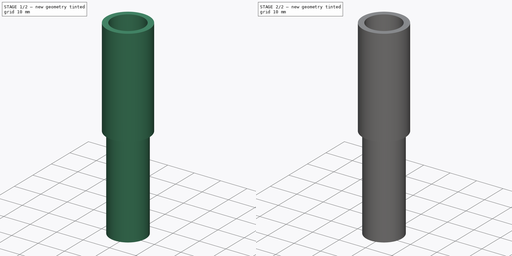
[diagram: build sequence overview — one tinted view per stage of 2, left to right]
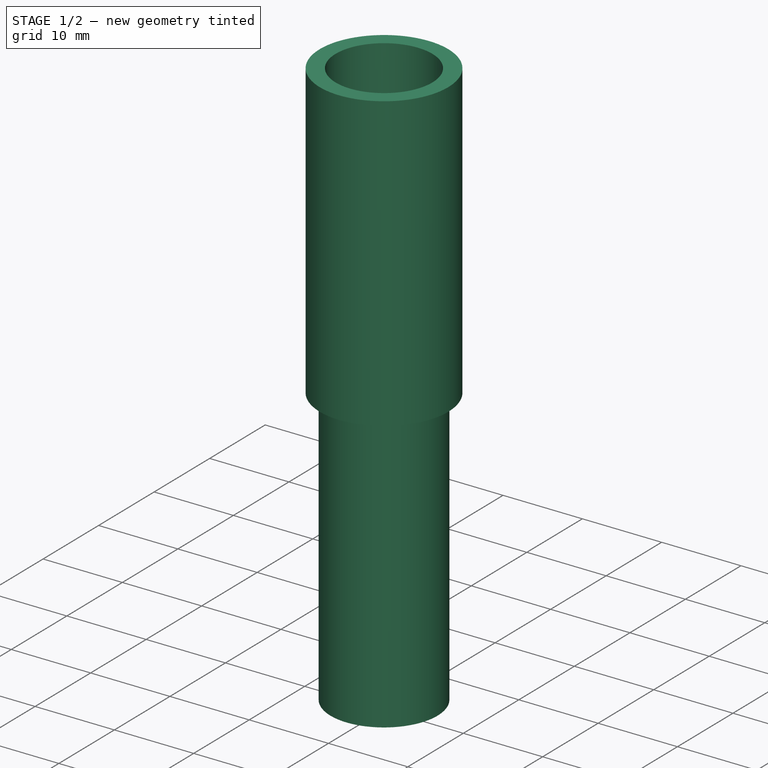
[diagram: stage 1 of 2 — iso view after this stage's code; geometry added in this stage tinted green]
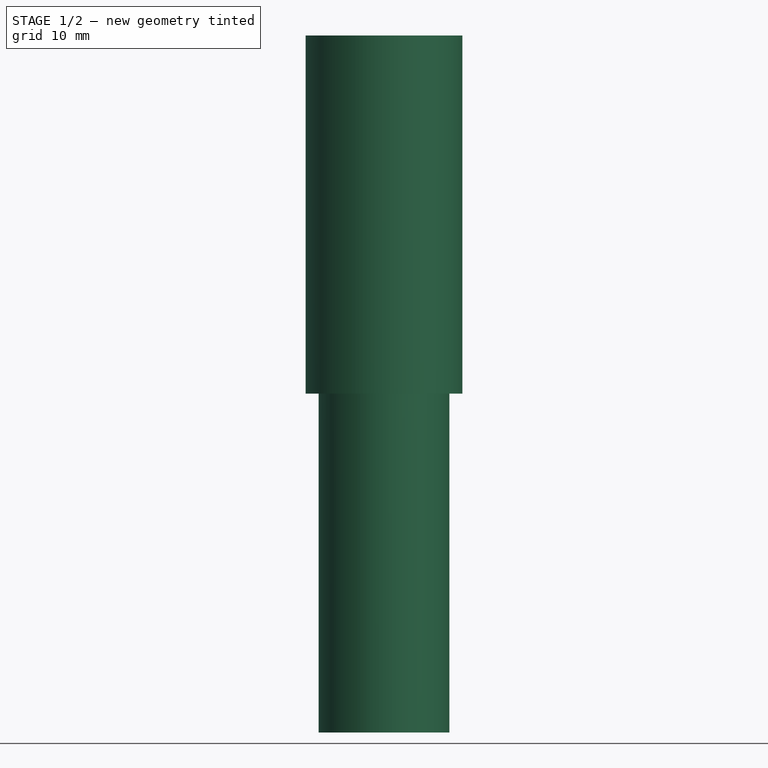
[diagram: stage 1 of 2 — front view after this stage's code; geometry added in this stage tinted green]
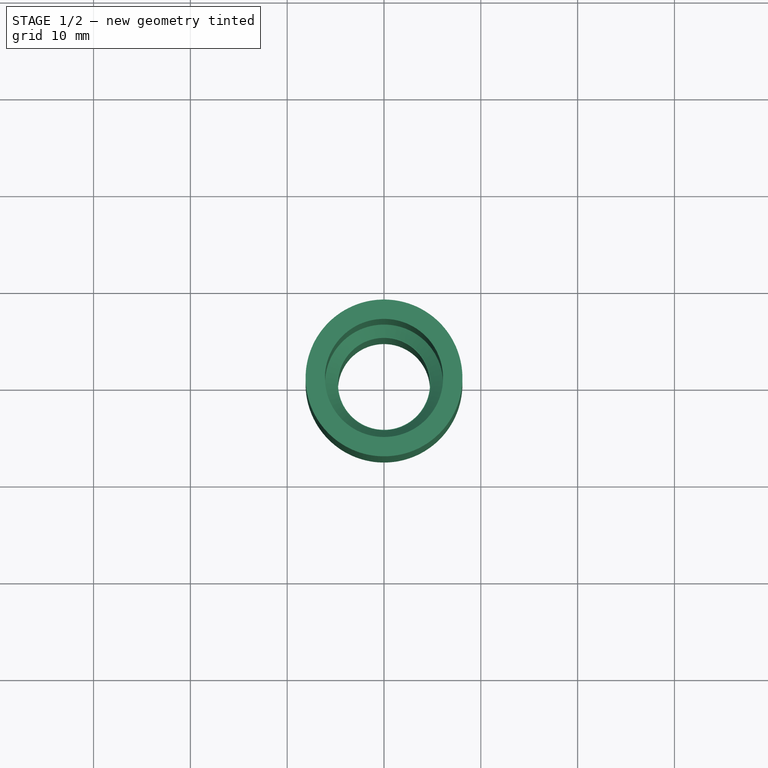
[diagram: stage 1 of 2 — top view after this stage's code; geometry added in this stage tinted green]
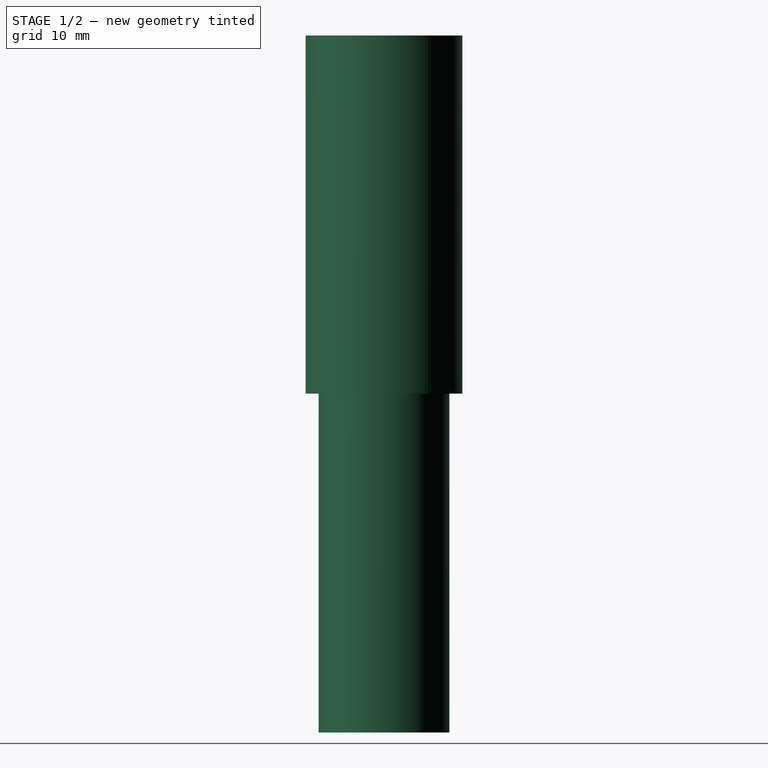
[diagram: stage 1 of 2 — right view after this stage's code; geometry added in this stage tinted green]
FCSTD DOCUMENT  (FreeCAD 0.19R24276 (Git))
Label: Model
License: All rights reserved
LicenseURL: http://en.wikipedia.org/wiki/All_rights_reserved
objects: Sketcher::SketchObject×4, PartDesign::Body×2, App::Part×2, PartDesign::Pad×1, PartDesign::Revolution×1, PartDesign::Chamfer×1
note: 12 computed .brp shape members not serialized (recipe doc carries the construction recipe); baked Part::Feature solids carry a one-line shape summary decoded from their .brp

FEATURE [Sketcher::SketchObject] Sketch001
  FullyConstrained = true
  MapMode = 5
  Placement = pos=(0,0,0) rot=(1,0,0;3.14159rad)
  Support = -> [Pad]
FEATURE [Sketcher::SketchObject] Sketch002
  FullyConstrained = true
  MapMode = 5
  Placement = pos=(0,0,35) rot=(0,0,1;0rad)
  Support = -> [Pad]
FEATURE [PartDesign::Body] Body
  Group = -> [Sketch,Pad,Sketch001,Sketch002]
  Origin = -> Origin001
  Tip = -> Pad
FEATURE [App::Part] Part
  Group = -> [Body]
  Origin = -> Origin
FEATURE [Sketcher::SketchObject] Sketch003
  FullyConstrained = true
  MapMode = 5
  Placement = pos=(0,0,0) rot=(1,0,0;1.5708rad)
  Support = -> [XZ_Plane003]
  sketch-geometry (8):
    g0: LineSegment StartX=-6.75 StartY=35 StartZ=0 EndX=-6.75 EndY=0 EndZ=0
    g1: LineSegment StartX=-8.1 StartY=35 StartZ=0 EndX=-8.1 EndY=72 EndZ=0
    g2: LineSegment StartX=-8.1 StartY=72 StartZ=0 EndX=-6.1 EndY=72 EndZ=0
    g3: LineSegment StartX=-6.1 StartY=72 StartZ=0 EndX=-6.1 EndY=37 EndZ=0
    g4: LineSegment StartX=-6.1 StartY=37 StartZ=0 EndX=-4.75 EndY=37 EndZ=0
    g5: LineSegment StartX=-4.75 StartY=37 StartZ=0 EndX=-4.75 EndY=0 EndZ=0
    g6: LineSegment StartX=-6.75 StartY=0 StartZ=0 EndX=-4.75 EndY=0 EndZ=0
    g7: LineSegment StartX=-8.1 StartY=35 StartZ=0 EndX=-6.75 EndY=35 EndZ=0
  constraints (24):
    c: PointOnObject(g0,g-1)
    c: Vertical(g0)
    c: Vertical(g1)
    c: Coincident(g2,g1)
    c: Horizontal(g2)
    c: Coincident(g3,g2)
    c: Vertical(g3)
    c: Coincident(g4,g3)
    c: Coincident(g5,g4)
    c: PointOnObject(g5,g-1)
    c: Vertical(g5)
    c: Coincident(g6,g0)
    c: Coincident(g6,g5)
    c: DistanceX(g6,g6) = 2
    c: Horizontal(g4)
    c: DistanceY(g3,g3) = 35
    c: DistanceY(g1,g1) = 37
    c: DistanceX(g5,g-1) = 4.75
    c: Coincident(g7,g1)
    c: Coincident(g7,g0)
    c: Horizontal(g7)
    c: DistanceX(g2,g2) = 2
    c: DistanceY(g0,g0) = 35
    c: DistanceX(g2,g-1) = 6.1
FEATURE [PartDesign::Revolution] Revolution
  Angle = 360
  Axis = (0,2e-16,1)
  Base = (0,0,0)
  Placement = pos=(0,0,0) rot=(1,0,0;1.5708rad)
  Profile = -> Sketch003
  ReferenceAxis = -> Sketch003 [V_Axis]
FEATURE [PartDesign::Chamfer] Chamfer
  Angle = 45
  Base = -> Revolution [Edge8]
  BaseFeature = -> Revolution
  ChamferType = 0
  FlipDirection = false
  Placement = pos=(0,0,0) rot=(1,0,0;1.5708rad)
  Size = 1.3
  Size2 = 1
  SupportTransform = false
FEATURE [PartDesign::Body] Body001
  Group = -> [Sketch003,Revolution,Chamfer]
  Origin = -> Origin003
  Tip = -> Chamfer
FEATURE [App::Part] Part001
  Group = -> [Body001]
  Origin = -> Origin002
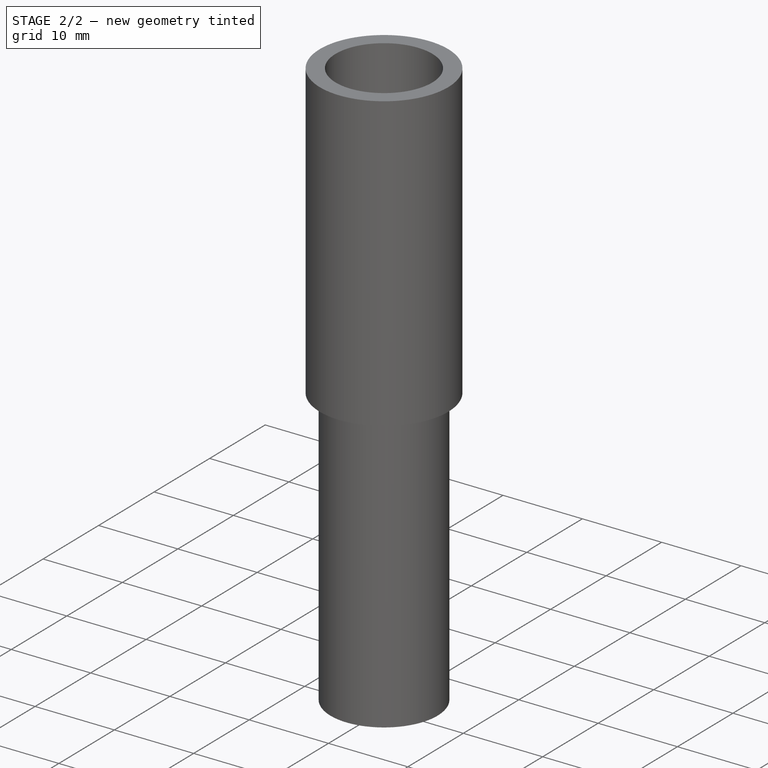
[diagram: stage 2 of 2 — iso view after this stage's code; geometry added in this stage tinted green]
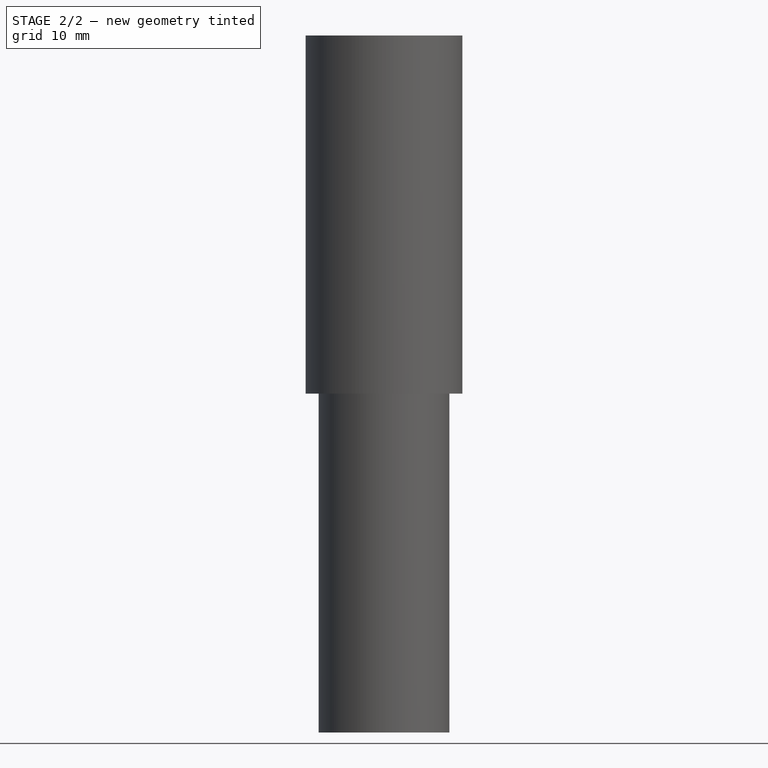
[diagram: stage 2 of 2 — front view after this stage's code; geometry added in this stage tinted green]
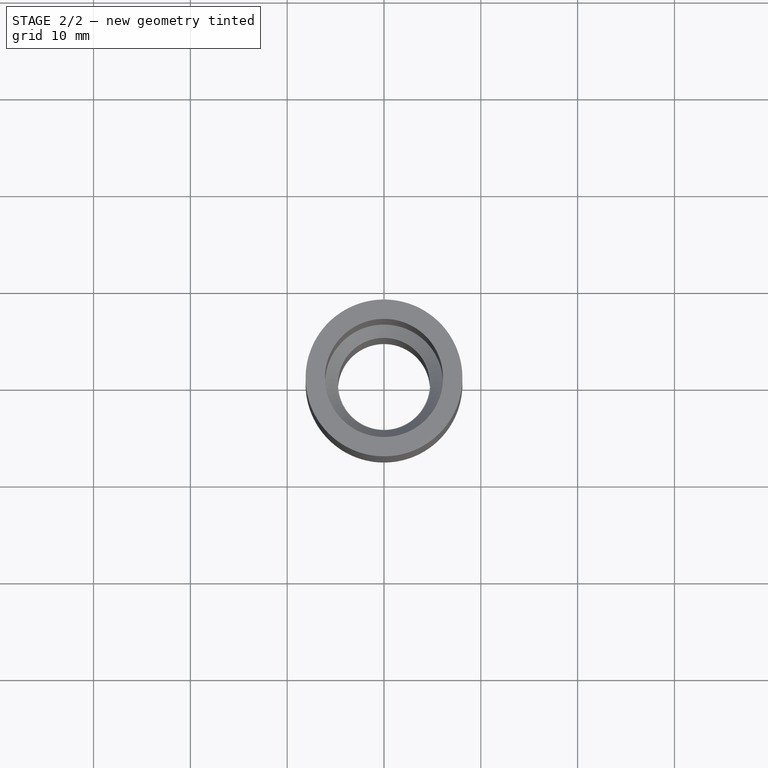
[diagram: stage 2 of 2 — top view after this stage's code; geometry added in this stage tinted green]
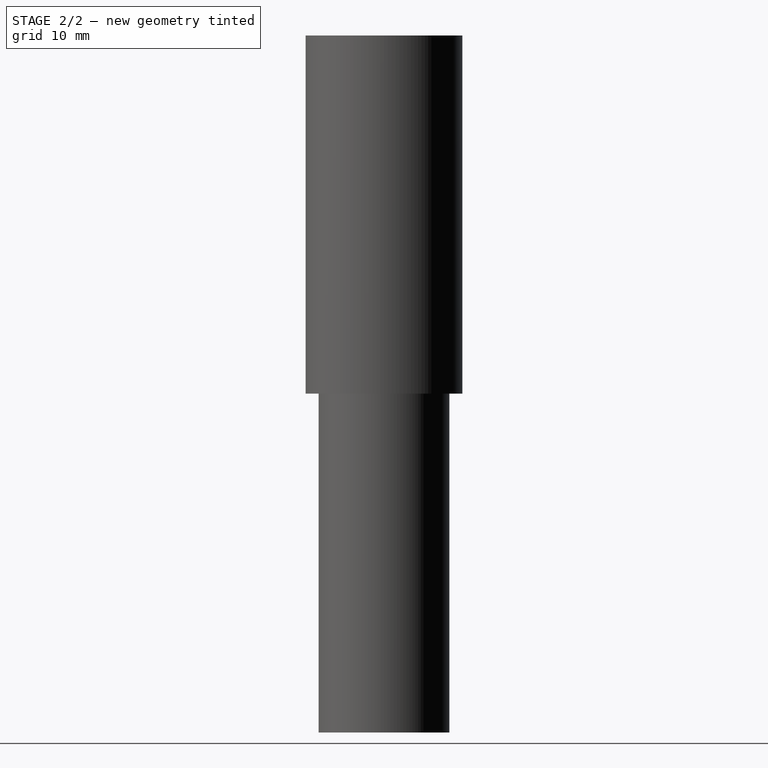
[diagram: stage 2 of 2 — right view after this stage's code; geometry added in this stage tinted green]
FEATURE [Sketcher::SketchObject] Sketch
  FullyConstrained = true
  MapMode = 5
  Support = -> [XY_Plane001]
  sketch-geometry (2):
    g0: Circle CenterX=0 CenterY=0 CenterZ=0 NormalX=0 NormalY=0 NormalZ=1 AngleXU=0 Radius=4.75
    g1: Circle CenterX=0 CenterY=0 CenterZ=0 NormalX=0 NormalY=0 NormalZ=1 AngleXU=0 Radius=5.75
  constraints (4):
    c: Coincident(g0,g-1)
    c: Coincident(g1,g0)
    c: Diameter(g0) = 9.5
    c: Diameter(g1) = 11.5
FEATURE [PartDesign::Pad] Pad
  Direction = (1,1,1)
  Length = 35
  Length2 = 100
  Profile = -> Sketch
  Type = 0
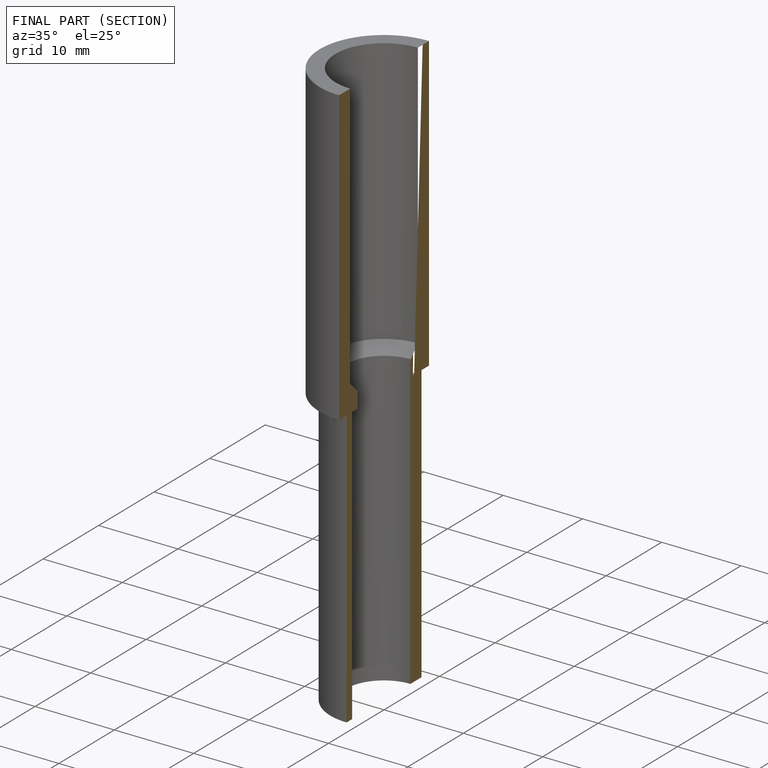
[diagram: finished part — half-section view (interior)]
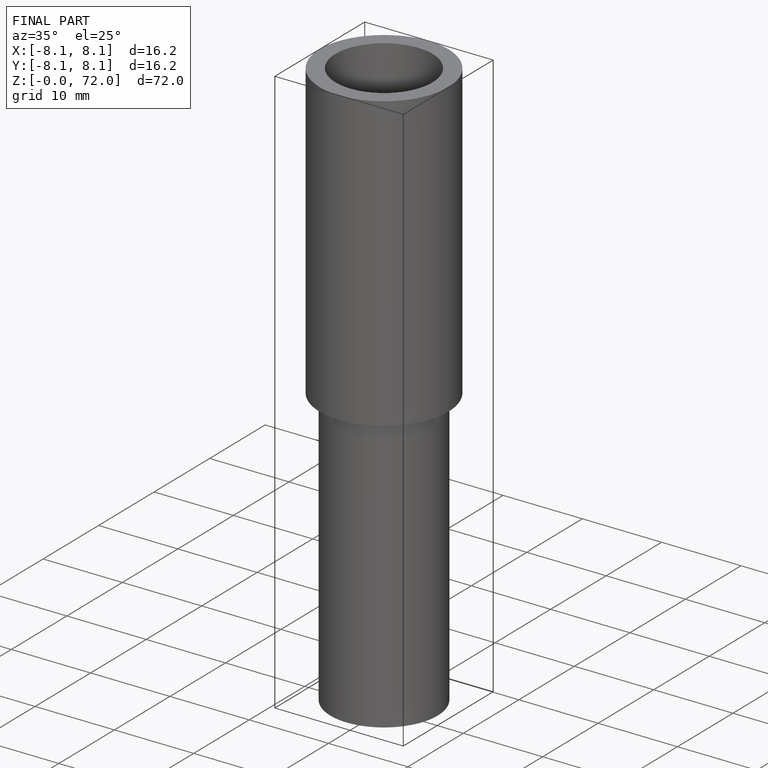
[diagram: finished part — iso view with bounding-box wireframe]
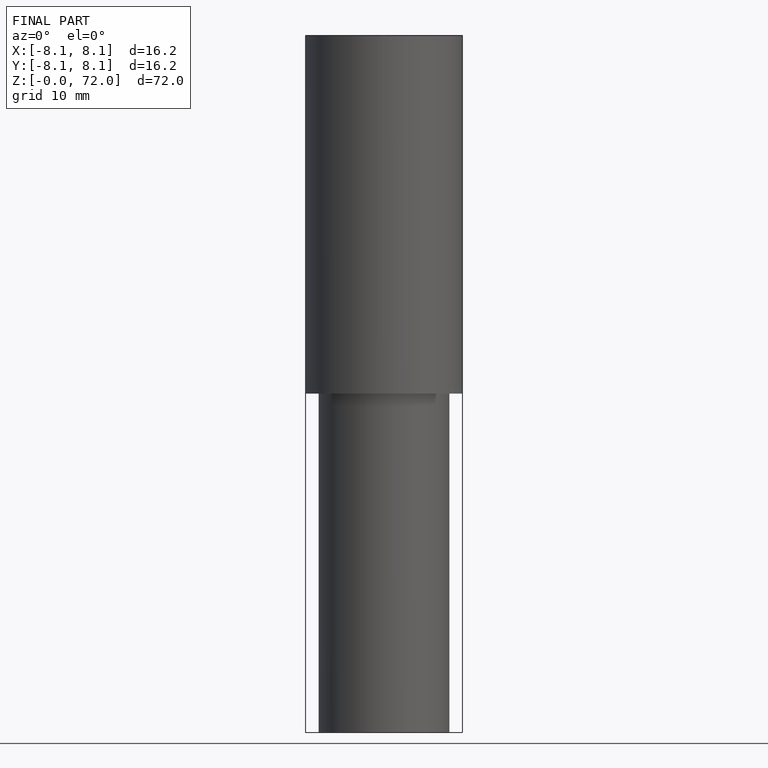
[diagram: finished part — front view with bounding-box wireframe]
